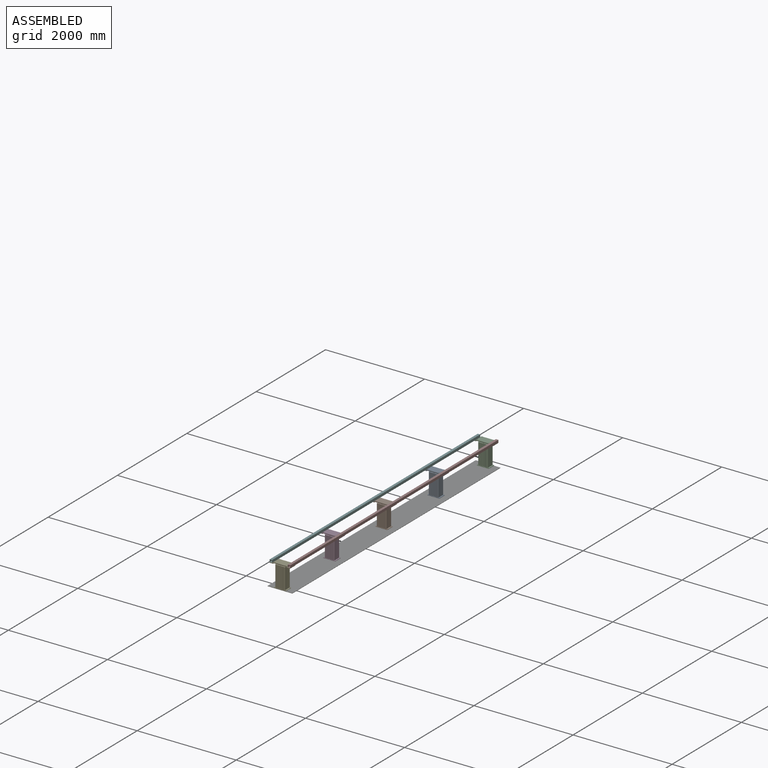
[diagram: assembled view]
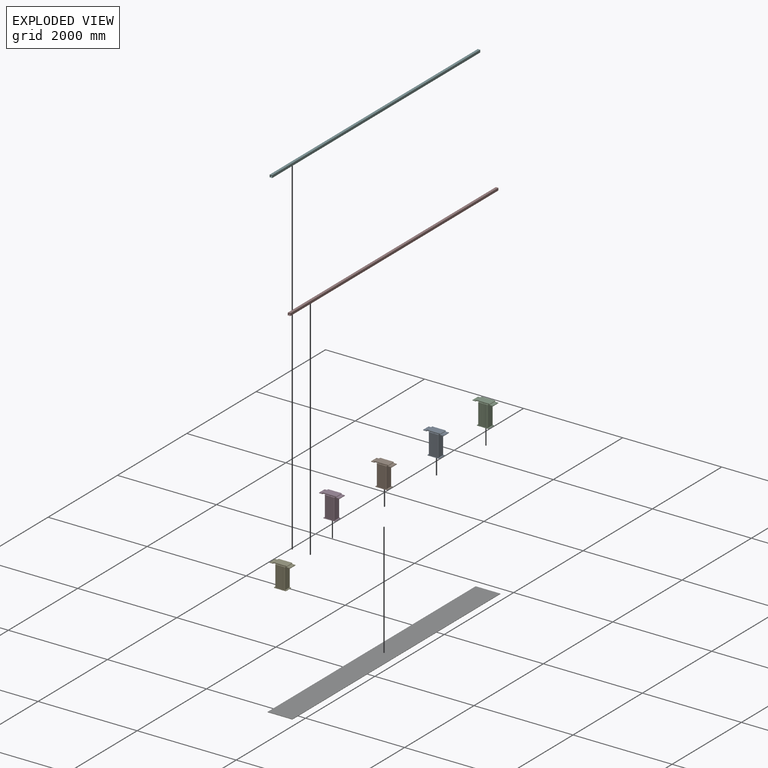
[diagram: exploded view]
GUIDED TOUR — MATED ASSEMBLY WITH SUBASSEMBLIES (Onshape document d715af9b73892f47e073f301, AutoMate assembly d715af9b73892f47e073f301_a028254d9cb7a4b105260dd4_e3bea9b0d38401d5063b9175_default)

This assembly has 13 component occurrences arranged in 8 top-level units: 3 individual components plus 5 subassemblies (S0, S1, S2, S3, S4). The tour has two levels: first the top level, where each subassembly is treated as one rigid unit; then each subassembly is toured internally in its own section (nesting deeper than one subassembly level is flattened into its subassembly's section).

Components are labeled P0..P12 across the whole record; subassembly units are labeled S0..S4. A mate is a constraint between two units; its type names the relative motion it leaves free:
  FASTENED — locks the two components together rigidly (no relative motion).
Axis/direction vectors are unit vectors and 'through' points are millimeter coordinates, both in the assembly's world frame.

TOP-LEVEL MATES (between units; each subassembly's internal mates are listed in its own section)
  1. FASTENED "Fastened 1": S4 <-> P6, direction (0.000, 0.000, -1.000) through (-284.84, -4255.86, -1574.37) mm
  2. FASTENED "Fastened 2": S3 <-> P6, direction (0.000, 0.000, -1.000) through (-284.84, -2830.86, -1574.37) mm
  3. FASTENED "Fastened 6": P5 <-> S4, direction (0.000, 0.000, -1.000) through (-467.84, -4305.86, -1129.37) mm
  4. FASTENED "Fastened 5": S2 <-> P6, direction (0.000, 0.000, -1.000) through (-284.84, 1594.14, -1574.37) mm
  5. FASTENED "Fastened 7": P11 <-> S4, direction (0.000, 0.000, -1.000) through (-101.84, -4305.86, -1129.37) mm
  6. FASTENED "Fastened 3": S1 <-> P6, direction (0.000, 0.000, -1.000) through (-284.84, -1330.86, -1574.37) mm
  7. FASTENED "Fastened 4": S0 <-> P6, direction (0.000, 0.000, -1.000) through (-284.84, 169.14, -1574.37) mm

TOP-LEVEL ASSEMBLY ORDER
  1. S4 — the base component [order verified]
  2. S3 [order verified]
  3. S1 [order verified]
  4. S0 [order verified]
  5. S2 [order verified]
  6. P5 [order verified]
  7. P11 [order verified]
  8. P6 [order verified]
Order-tag legend:
  [order verified] — this step's position reverses a verified removal order: the component was checked to insert without passing through the ones already placed.

Of the 13 component occurrences, 3 carry the full construction recipe — the FeatureScript program that regenerates the part's solid from scratch; the rest are supplied as boundary geometry only. Each toured unit is shown spotlighted twice — assembled, then exploded with a leader line back to its socket (green = recipe-attached component, orange = geometry-only, blue = subassembly unit; the rest desaturated gray).
NOTE — document 2 of 2 of this assembly tour. The two overview renders and the header above are repeated from document 1; the component sections below continue where the previous document stopped.
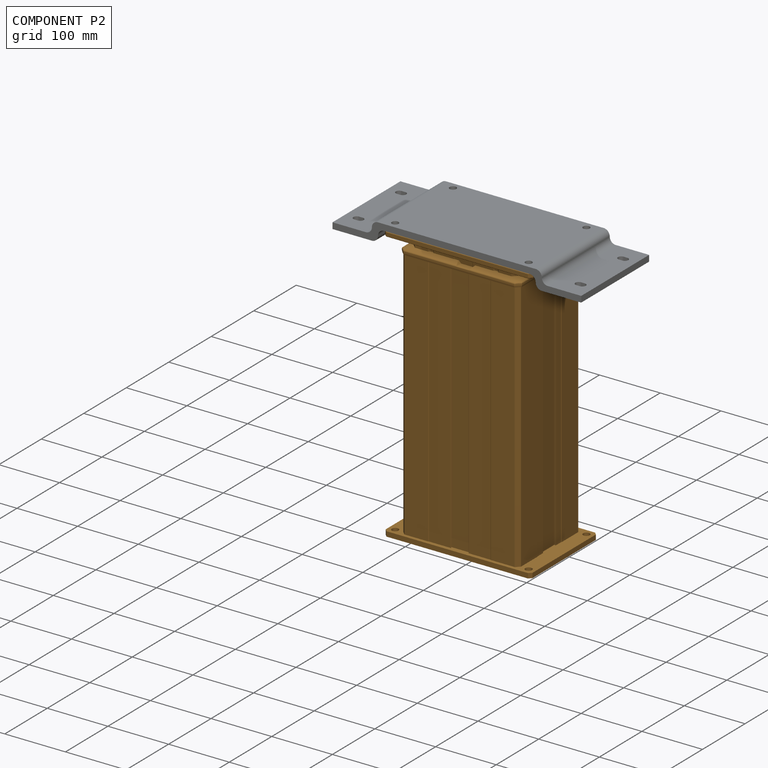
[diagram: component P2 — assembled]
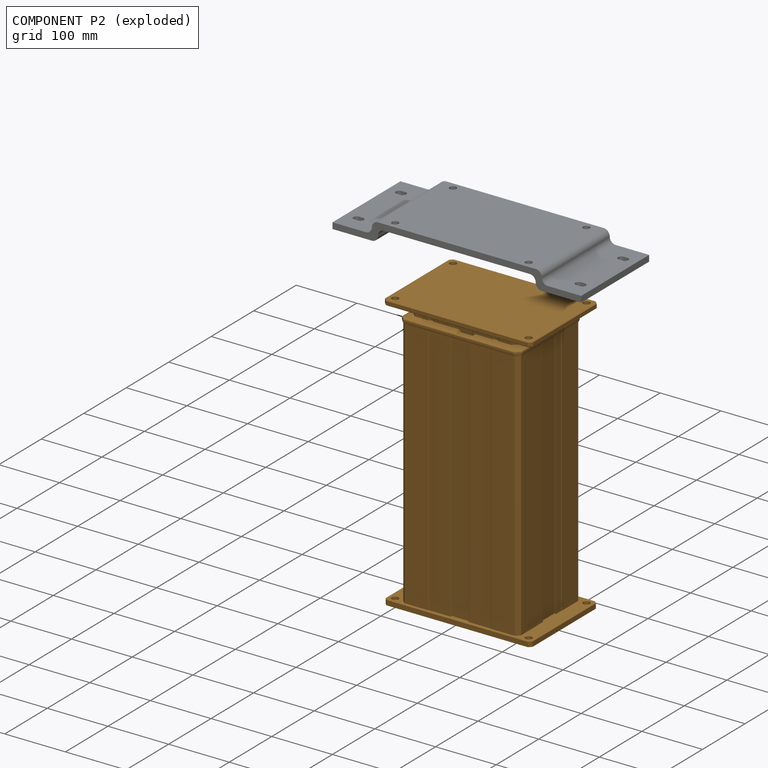
[diagram: component P2 — exploded]
COMPONENT P2 — geometry summary (no construction recipe available for this part):
  bounding box: 455.2 x 244.2 x 160.2 mm
  B-rep topology: 1 solid, 367 faces, 1972 edges
  volume: 12823959 mm^3 (72% of its bounding box)
  symmetry: 2-fold rotationally symmetric about the y axis; mirror-symmetric across its x mid-plane, z mid-plane
Held by: no mates (free).
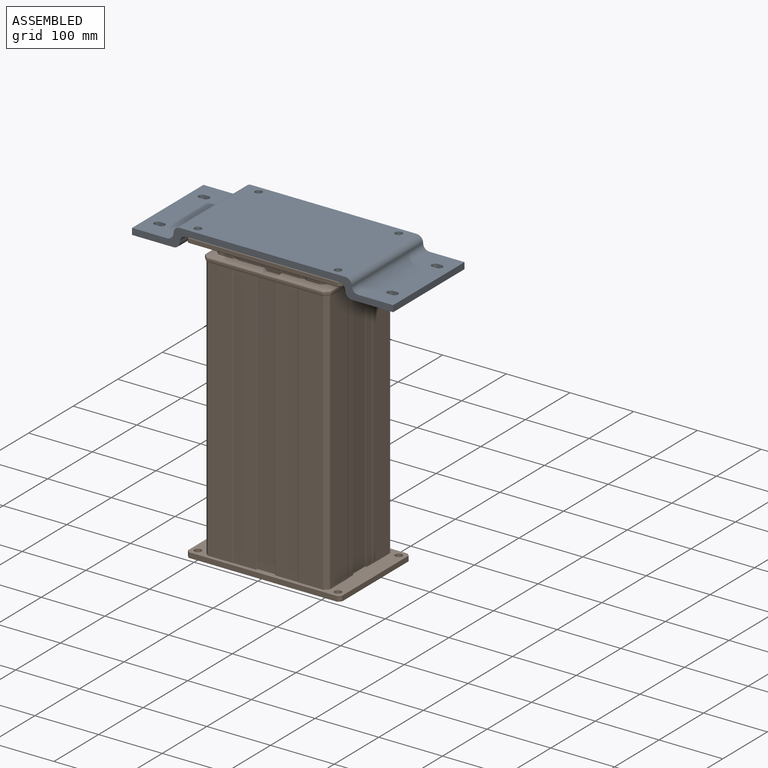
[diagram: subassembly S3 — assembled view]
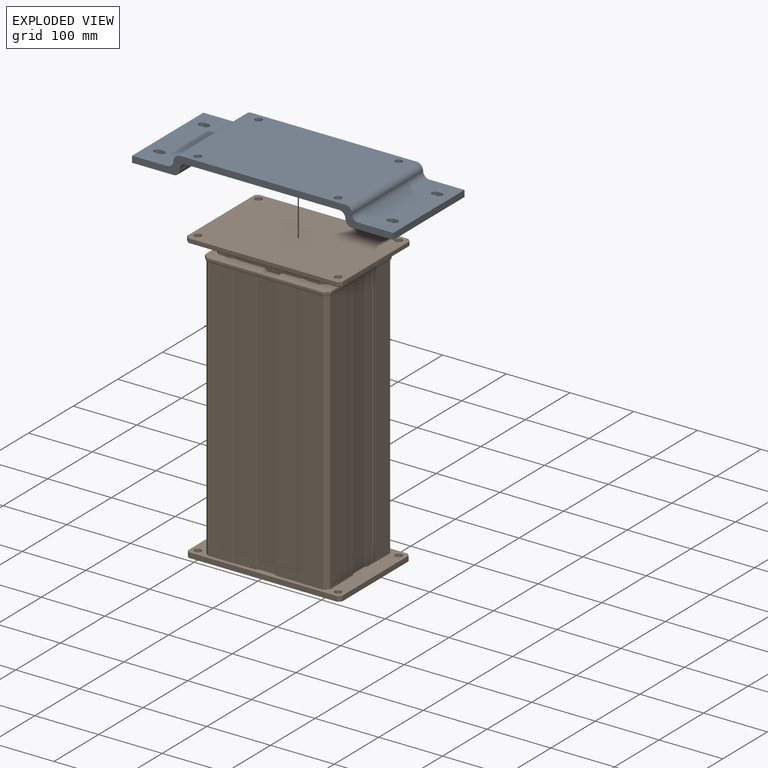
[diagram: subassembly S3 — exploded view]
SUBASSEMBLY S3 TOUR — 2 components, shown here in isolation at its own camera.
No internal mates are recorded for this subassembly; its components are held by their stored placements.

ASSEMBLY ORDER (within the subassembly)
  1. P10 — the base component [order verified]
  2. P3 [order verified]
Order-tag legend:
  [order verified] — this step's position reverses a verified removal order: the component was checked to insert without passing through the ones already placed.
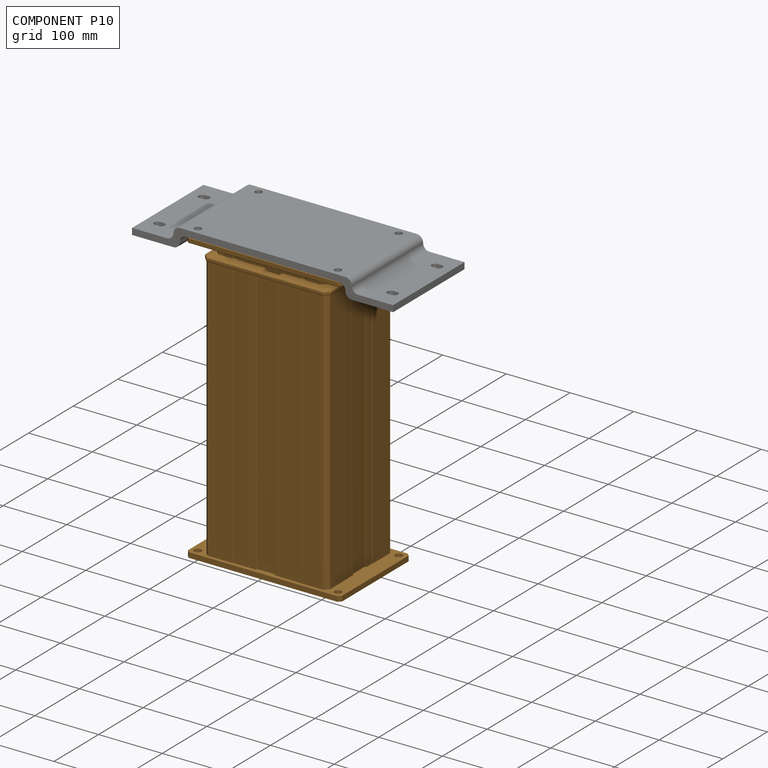
[diagram: component P10 — assembled]
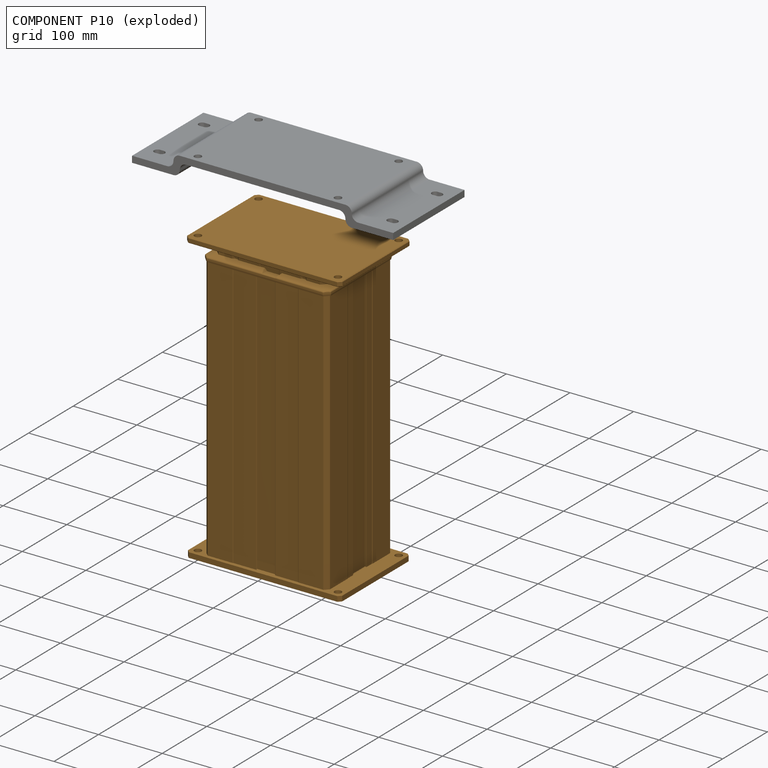
[diagram: component P10 — exploded]
COMPONENT P10 — geometry summary (no construction recipe available for this part):
  bounding box: 455.2 x 244.2 x 160.2 mm
  B-rep topology: 1 solid, 367 faces, 1972 edges
  volume: 12823959 mm^3 (72% of its bounding box)
  symmetry: 2-fold rotationally symmetric about the y axis; mirror-symmetric across its x mid-plane, z mid-plane
Held by: no mates (free).
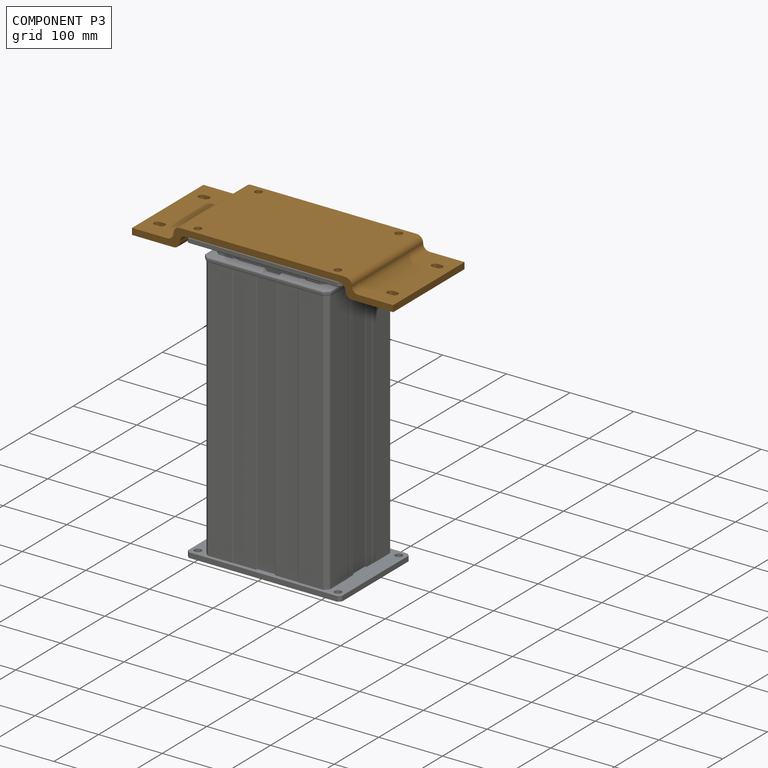
[diagram: component P3 — assembled]
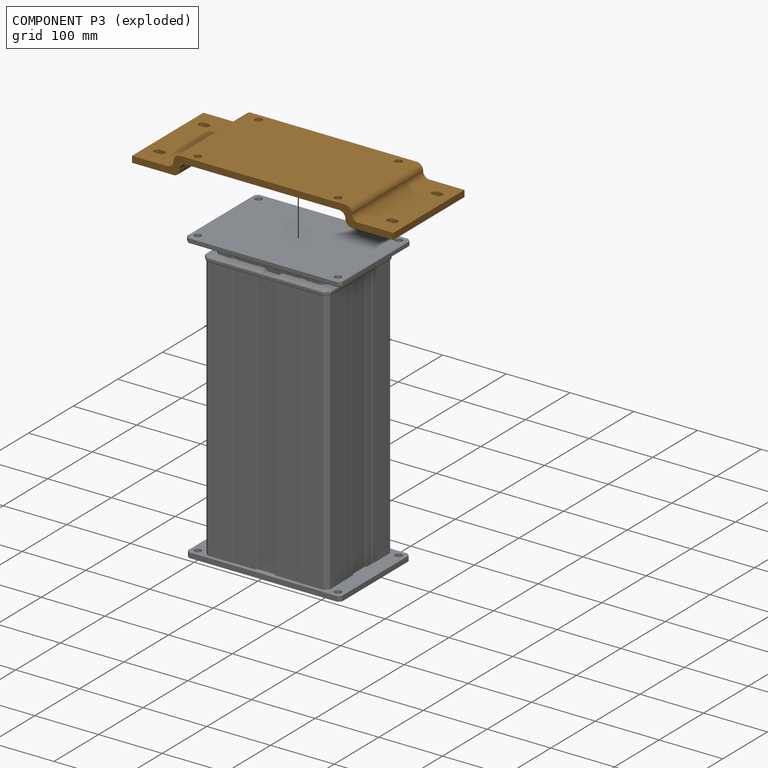
[diagram: component P3 — exploded]
COMPONENT P3 — geometry summary (no construction recipe available for this part):
  bounding box: 410.0 x 160.0 x 30.0 mm
  B-rep topology: 1 solid, 38 faces, 216 edges
  volume: 709757 mm^3 (36% of its bounding box)
  symmetry: 2-fold rotationally symmetric about the z axis; mirror-symmetric across its x mid-plane, y mid-plane
Held by: no mates (free).
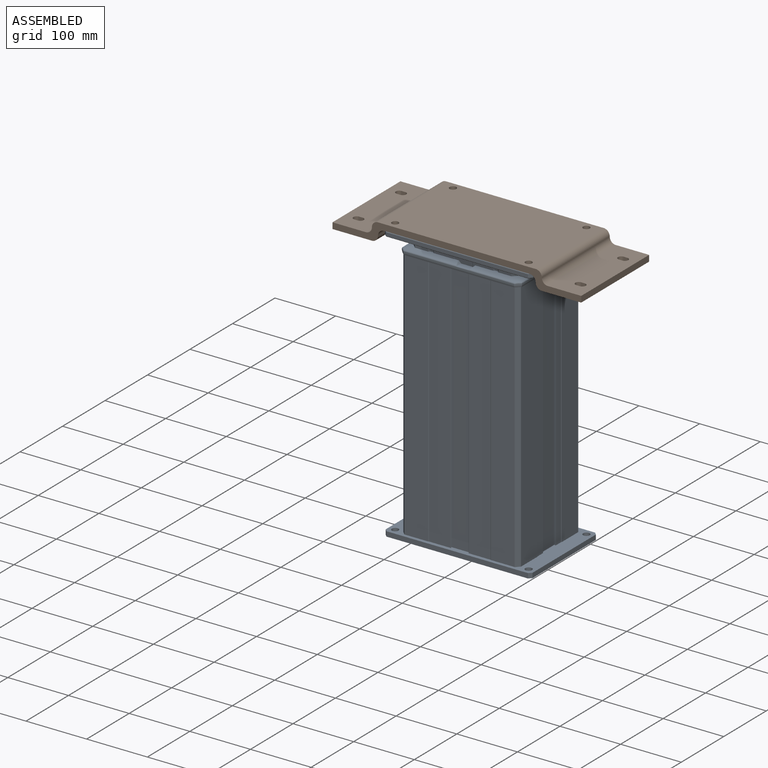
[diagram: subassembly S4 — assembled view]
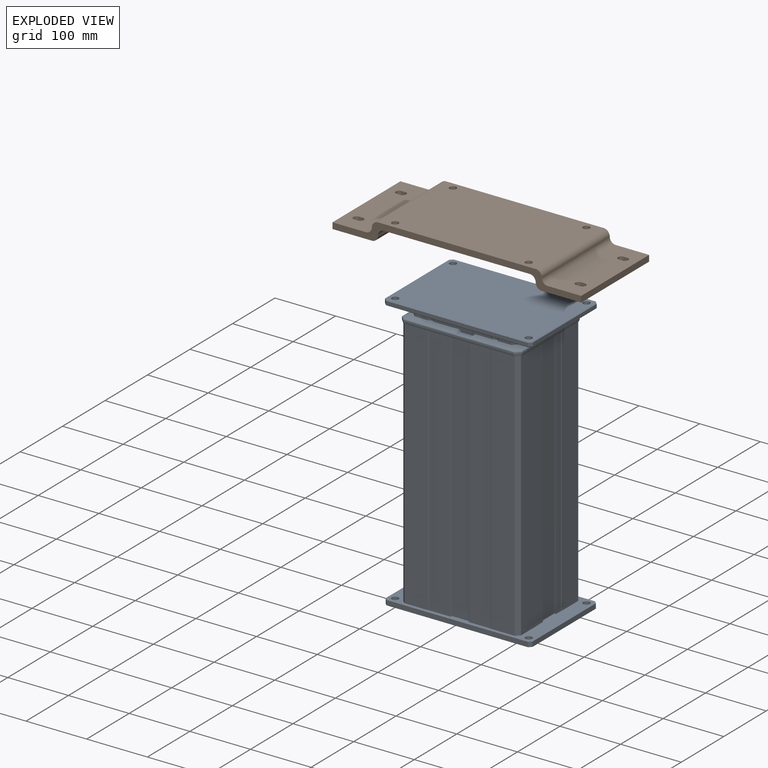
[diagram: subassembly S4 — exploded view]
SUBASSEMBLY S4 TOUR — 2 components, shown here in isolation at its own camera.
No internal mates are recorded for this subassembly; its components are held by their stored placements.

ASSEMBLY ORDER (within the subassembly)
  1. P7 — the base component [order verified]
  2. P4 [order verified]
Order-tag legend:
  [order verified] — this step's position reverses a verified removal order: the component was checked to insert without passing through the ones already placed.
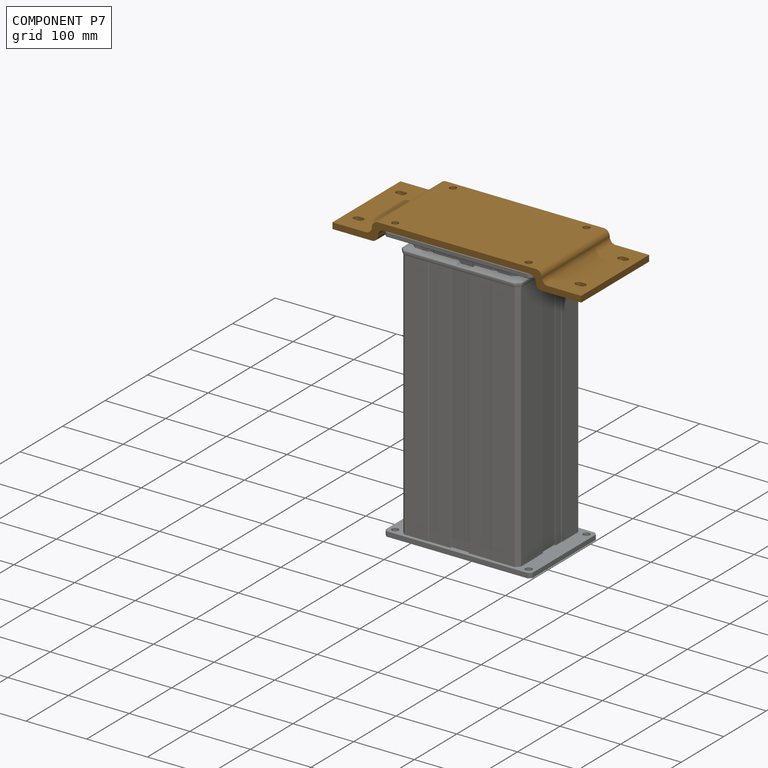
[diagram: component P7 — assembled]
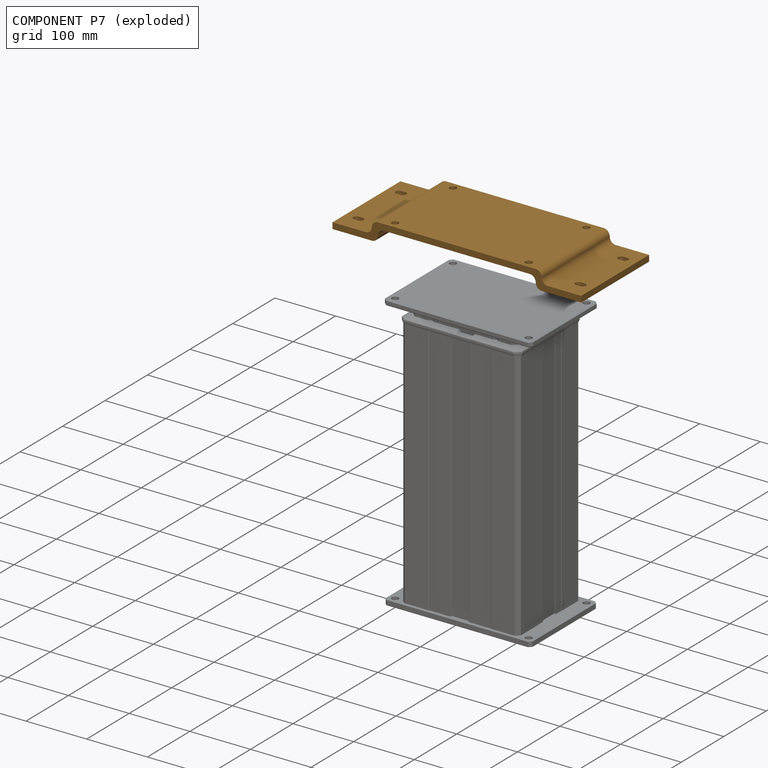
[diagram: component P7 — exploded]
COMPONENT P7 — geometry summary (no construction recipe available for this part):
  bounding box: 410.0 x 160.0 x 30.0 mm
  B-rep topology: 1 solid, 38 faces, 216 edges
  volume: 709757 mm^3 (36% of its bounding box)
  symmetry: 2-fold rotationally symmetric about the z axis; mirror-symmetric across its x mid-plane, y mid-plane
Held by: no mates (free).
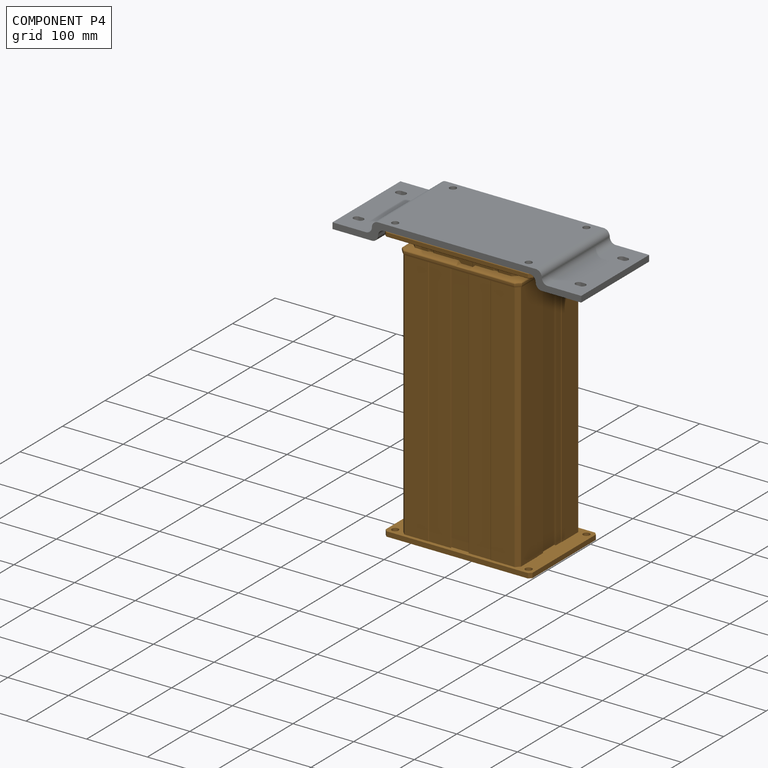
[diagram: component P4 — assembled]
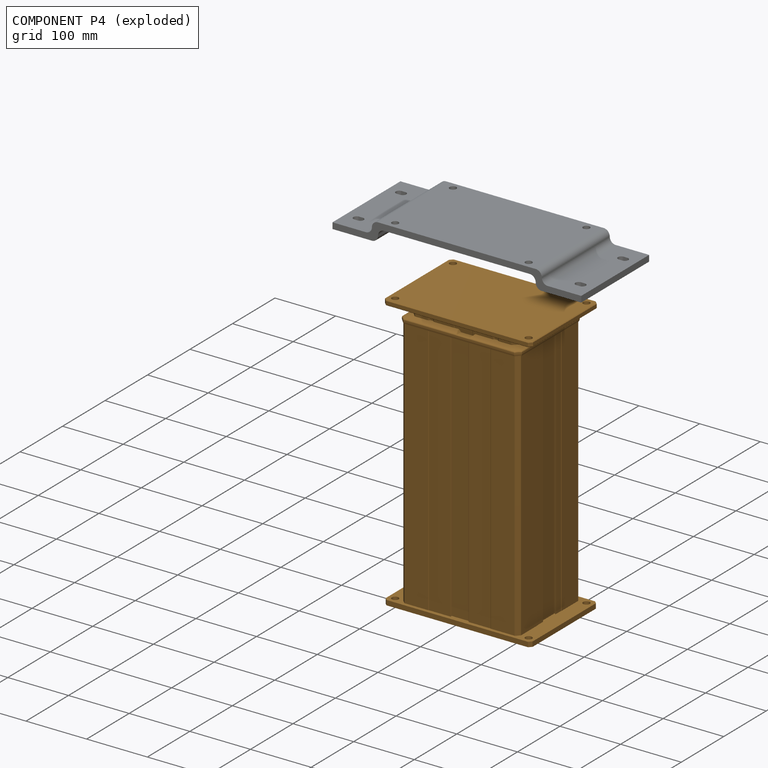
[diagram: component P4 — exploded]
COMPONENT P4 — geometry summary (no construction recipe available for this part):
  bounding box: 455.2 x 244.2 x 160.2 mm
  B-rep topology: 1 solid, 367 faces, 1972 edges
  volume: 12823959 mm^3 (72% of its bounding box)
  symmetry: 2-fold rotationally symmetric about the y axis; mirror-symmetric across its x mid-plane, z mid-plane
Held by: no mates (free).
PROVENANCE & LICENSES
Assembly (occurrences, transforms, mates, per-part STEP geometry): AutoMate dataset, Zenodo record 7776208, CC0.
Construction recipes: CADFS (HuggingFace VladPyatov/CADFS, CC-BY-4.0, layered over the ABC dataset), FeatureScript reconstruction programs keyed by ABC model id.
Join: ABC meta listings map ABC model id -> Onshape documentId; within a shared document, parts are matched by geometric signature (bounding-box dims + volume at 0.1% relative tolerance, exact B-rep face/solid counts).
Verification: 3 of this assembly's 13 components carry a recipe attachment, and every attachment is mesh-verified: the CADFS STEP and the AutoMate member STEP were compared as meshes in their shared local frame (symmetric sampled-point-to-mesh distance); worst across the 3 attachments: below the mesh-comparison resolution (tessellation chordal tolerance ~9.03 mm) on a 6021 mm part.
Renders: orthographic iso camera (az 35 / el 25); the floor grid conveys scale (grid pitch printed in each image; no ruler). In the exploded view each component is displaced by its stored offset vector: the offsets alone carry the explosion direction (mate normal/axis signs are not orientation cues and do not encode it), and separation distances are assigned per mate-chain, not proportionally to assembly-order depth.
